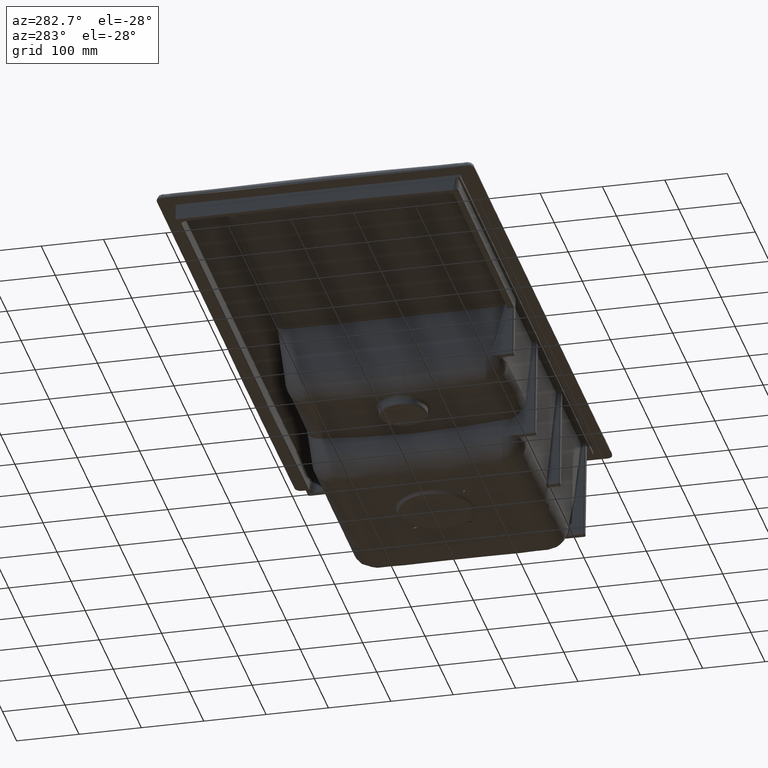
[diagram: clean part render]
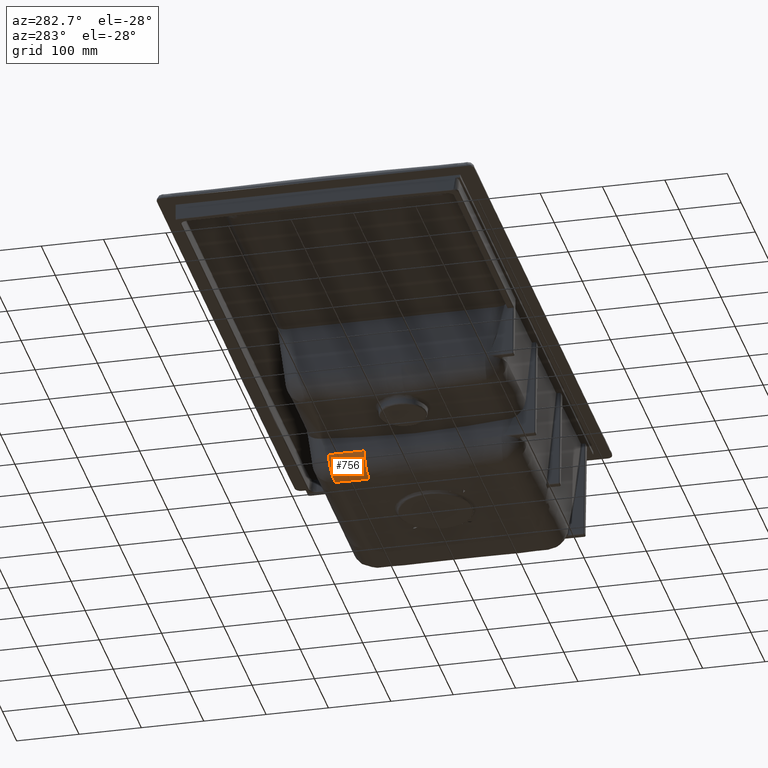
[diagram: same view with one face highlighted and labeled with its STEP entity id]
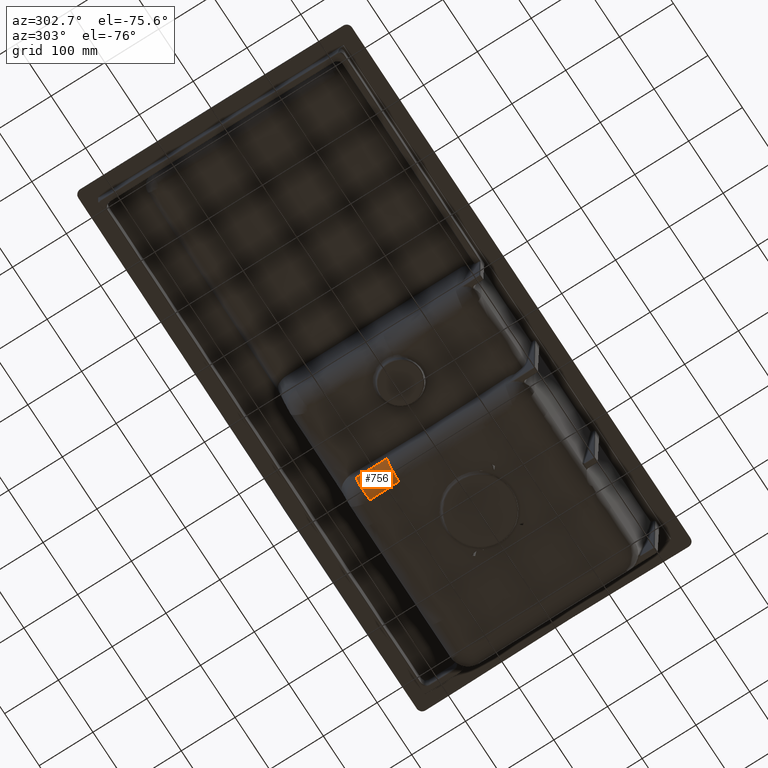
[diagram: same view with one face highlighted and labeled with its STEP entity id]
A machine part, auxiliary view. The second image highlights one B-rep face of the part: STEP entity #756.
A second angle (auxiliary view) of the same face is appended — the face is thin or edge-on in the first view.
In plain terms, the highlighted face is a freeform B-spline surface patch.
Its self-contained STEP definition (entity closure, byte-faithful):
#756=ADVANCED_FACE('',(#1265),#1030,.T.);
#1030=B_SPLINE_SURFACE_WITH_KNOTS('',3,3,((#17713,#17714,#17715,#17716,
#17717,#17718,#17719,#17720),(#17721,#17722,#17723,#17724,#17725,#17726,
#17727,#17728),(#17729,#17730,#17731,#17732,#17733,#17734,#17735,#17736),
(#17737,#17738,#17739,#17740,#17741,#17742,#17743,#17744),(#17745,#17746,
#17747,#17748,#17749,#17750,#17751,#17752),(#17753,#17754,#17755,#17756,
#17757,#17758,#17759,#17760),(#17761,#17762,#17763,#17764,#17765,#17766,
#17767,#17768),(#17769,#17770,#17771,#17772,#17773,#17774,#17775,#17776),
(#17777,#17778,#17779,#17780,#17781,#17782,#17783,#17784),(#17785,#17786,
#17787,#17788,#17789,#17790,#17791,#17792)),.UNSPECIFIED.,.F.,.F.,.F.,(4,
2,2,2,4),(4,2,2,4),(0.,0.25,0.5,0.75,1.),(0.,0.5,0.75,1.),.UNSPECIFIED.);
#1265=FACE_OUTER_BOUND('',#1674,.T.);
#1674=EDGE_LOOP('',(#2743,#2744,#2745,#2746));
#2743=ORIENTED_EDGE('',*,*,#4877,.F.);
#2744=ORIENTED_EDGE('',*,*,#4858,.T.);
#2745=ORIENTED_EDGE('',*,*,#4863,.T.);
#2746=ORIENTED_EDGE('',*,*,#4876,.F.);
#4115=VERTEX_POINT('',#16732);
#4116=VERTEX_POINT('',#16754);
#4120=VERTEX_POINT('',#17029);
#4127=VERTEX_POINT('',#17638);
#4858=EDGE_CURVE('',#4116,#4115,#5713,.T.);
#4863=EDGE_CURVE('',#4115,#4120,#5718,.T.);
#4876=EDGE_CURVE('',#4127,#4120,#5731,.T.);
#4877=EDGE_CURVE('',#4116,#4127,#5732,.T.);
#5713=B_SPLINE_CURVE_WITH_KNOTS('',3,(#16733,#16734,#16735,#16736,#16737,
#16738,#16739,#16740,#16741,#16742,#16743,#16744,#16745,#16746,#16747,#16748,
#16749,#16750,#16751,#16752,#16753),.UNSPECIFIED.,.F.,.F.,(4,2,2,2,2,2,
1,2,2,2,4),(0.,0.249999999999989,0.374999999999983,0.437499999999981,0.46874999999998,
0.48437499999998,0.492187499999981,0.496093749999981,0.499999999999981,
0.74999999999999,1.),.UNSPECIFIED.);
#5718=B_SPLINE_CURVE_WITH_KNOTS('',3,(#17030,#17031,#17032,#17033,#17034,
#17035,#17036,#17037,#17038,#17039,#17040,#17041,#17042,#17043,#17044,#17045,
#17046,#17047,#17048,#17049,#17050,#17051,#17052,#17053,#17054,#17055,#17056,
#17057,#17058,#17059,#17060,#17061,#17062,#17063),.UNSPECIFIED.,.F.,.F.,
(4,2,2,1,2,2,2,2,1,2,2,2,2,2,2,2,2,4),(0.,0.062500000000003,0.0937500000000037,
0.109375000000005,0.117187500000006,0.125000000000007,0.187500000000016,
0.21875000000002,0.234375000000021,0.242187500000021,0.250000000000022,
0.375000000000015,0.437500000000012,0.46875000000001,0.48437500000001,0.492187500000009,
0.500000000000009,1.),.UNSPECIFIED.);
#5731=B_SPLINE_CURVE_WITH_KNOTS('',3,(#17639,#17640,#17641,#17642,#17643,
#17644,#17645,#17646,#17647,#17648),.UNSPECIFIED.,.F.,.F.,(4,2,2,2,4),(0.,
0.25,0.5,0.75,1.),.UNSPECIFIED.);
#5732=B_SPLINE_CURVE_WITH_KNOTS('',3,(#17709,#17710,#17711,#17712),
 .UNSPECIFIED.,.F.,.F.,(4,4),(0.,1.),.UNSPECIFIED.);
#16732=CARTESIAN_POINT('',(125.118787982685,136.611800549359,-205.689981823979));
#16733=CARTESIAN_POINT('',(89.8626617895508,139.651983763834,-174.630232128626));
#16734=CARTESIAN_POINT('',(90.2945806668809,139.612162787837,-178.737051671743));
#16735=CARTESIAN_POINT('',(91.6186430086929,139.51160389423,-183.060883864416));
#16736=CARTESIAN_POINT('',(95.0422082936348,139.266821307227,-189.041519058109));
#16737=CARTESIAN_POINT('',(96.4162075277271,139.169092524338,-190.946531954952));
#16738=CARTESIAN_POINT('',(98.7631666689505,138.994293601995,-193.597303809361));
#16739=CARTESIAN_POINT('',(99.5930966351926,138.931325876002,-194.446389038769));
#16740=CARTESIAN_POINT('',(100.901071444801,138.829332240703,-195.658575884306));
#16741=CARTESIAN_POINT('',(101.347573488267,138.794077507503,-196.052394884513));
#16742=CARTESIAN_POINT('',(102.032025037288,138.739250718608,-196.626519716146));
#16743=CARTESIAN_POINT('',(102.262644414898,138.720651892155,-196.815112111921));
#16744=CARTESIAN_POINT('',(102.611957587843,138.692252285385,-197.093779141816));
#16745=CARTESIAN_POINT('',(102.787466934699,138.677927636916,-197.232059093907));
#16746=CARTESIAN_POINT('',(102.964224102886,138.663414615596,-197.368752883133));
#16747=CARTESIAN_POINT('',(103.082336014582,138.653697285281,-197.459528946534));
#16748=CARTESIAN_POINT('',(103.171886064172,138.646310014255,-197.527783887414));
#16749=CARTESIAN_POINT('',(105.054988975323,138.490758872686,-198.957205642606));
#16750=CARTESIAN_POINT('',(107.778623274064,138.249303967342,-200.764073427244));
#16751=CARTESIAN_POINT('',(115.187991371157,137.578919606542,-203.956219832075));
#16752=CARTESIAN_POINT('',(119.896392751804,137.148491713459,-205.288550537845));
#16753=CARTESIAN_POINT('',(125.118732744935,136.611373273041,-205.690128675211));
#16754=CARTESIAN_POINT('',(89.8626617915654,139.651983897885,-174.630232147781));
#17029=CARTESIAN_POINT('',(123.999949202719,82.6683662221889,-206.771970203778));
#17030=CARTESIAN_POINT('',(125.118763162953,136.611370144619,-205.690131014227));
#17031=CARTESIAN_POINT('',(125.103052536823,135.923675057913,-205.720556984895));
#17032=CARTESIAN_POINT('',(125.08217407113,135.017346828818,-205.760034047002));
#17033=CARTESIAN_POINT('',(125.044280926916,133.330035888963,-205.830381311529));
#17034=CARTESIAN_POINT('',(125.030549519932,132.712963785317,-205.855673004989));
#17035=CARTESIAN_POINT('',(125.008321226047,131.705436719729,-205.895951967806));
#17036=CARTESIAN_POINT('',(124.996797231012,131.181193686709,-205.916675564411));
#17037=CARTESIAN_POINT('',(124.984638396245,130.626240119118,-205.93818473733));
#17038=CARTESIAN_POINT('',(124.976387131742,130.249447671424,-205.952687891693));
#17039=CARTESIAN_POINT('',(124.971131091725,130.009316704914,-205.961855519507));
#17040=CARTESIAN_POINT('',(124.942190610505,128.687252776529,-206.012036139976));
#17041=CARTESIAN_POINT('',(124.917559372798,127.537434569373,-206.053800014777));
#17042=CARTESIAN_POINT('',(124.881243172325,125.850766010382,-206.112523796702));
#17043=CARTESIAN_POINT('',(124.869279356601,125.29485496703,-206.131445474828));
#17044=CARTESIAN_POINT('',(124.851651360959,124.470397098963,-206.158899143256));
#17045=CARTESIAN_POINT('',(124.842910198093,124.060525598812,-206.172393555664));
#17046=CARTESIAN_POINT('',(124.834281600217,123.654191974378,-206.185548142305));
#17047=CARTESIAN_POINT('',(124.82855456484,123.384089267027,-206.194243314314));
#17048=CARTESIAN_POINT('',(124.824755020001,123.204547653459,-206.199982219225));
#17049=CARTESIAN_POINT('',(124.792637399844,121.685063171093,-206.248345864208));
#17050=CARTESIAN_POINT('',(124.754252774604,119.845674753317,-206.304352494863));
#17051=CARTESIAN_POINT('',(124.684489962029,116.473039876543,-206.394963909451));
#17052=CARTESIAN_POINT('',(124.659214509824,115.246577207366,-206.426227831661));
#17053=CARTESIAN_POINT('',(124.618435963695,113.253666750708,-206.473227214894));
#17054=CARTESIAN_POINT('',(124.604367063145,112.563828217676,-206.488908614054));
#17055=CARTESIAN_POINT('',(124.582586786386,111.490798783982,-206.512247082189));
#17056=CARTESIAN_POINT('',(124.575210264309,111.126741664494,-206.519995840267));
#17057=CARTESIAN_POINT('',(124.563957860583,110.57107885709,-206.531545952544));
#17058=CARTESIAN_POINT('',(124.560176438605,110.384262103447,-206.535383809096));
#17059=CARTESIAN_POINT('',(124.552552366795,110.007437178442,-206.543030567774));
#17060=CARTESIAN_POINT('',(124.547676236112,109.76630438333,-206.547851294871));
#17061=CARTESIAN_POINT('',(124.363090760952,100.635159928759,-206.728568911972));
#17062=CARTESIAN_POINT('',(124.185845228276,91.6341252857419,-206.800125888416));
#17063=CARTESIAN_POINT('',(123.99995773826,82.6683673721619,-206.771914123044));
#17638=CARTESIAN_POINT('',(89.8592490475708,82.6808125389908,-174.597782712324));
#17639=CARTESIAN_POINT('',(89.8592490475708,82.6808125389994,-174.597782712324));
#17640=CARTESIAN_POINT('',(90.2769242233169,82.6785255124785,-178.56916869352));
#17641=CARTESIAN_POINT('',(91.5000159911137,82.6689095239965,-182.653782024116));
#17642=CARTESIAN_POINT('',(95.5076712166015,82.6445512138758,-190.201257791102));
#17643=CARTESIAN_POINT('',(98.2772294618817,82.6303933137687,-193.651238878582));
#17644=CARTESIAN_POINT('',(104.773218784554,82.6136546495156,-199.401387483189));
#17645=CARTESIAN_POINT('',(108.488405142284,82.6113478782568,-201.70608073729));
#17646=CARTESIAN_POINT('',(116.184286090312,82.6261448152791,-205.09723128994));
#17647=CARTESIAN_POINT('',(120.159662343416,82.6431323019797,-206.189067182267));
#17648=CARTESIAN_POINT('',(123.999956312089,82.6683659668508,-206.771923319698));
#17709=CARTESIAN_POINT('',(89.8626617895508,139.651983763595,-174.630232128625));
#17710=CARTESIAN_POINT('',(89.8615242088908,120.661593355395,-174.619415656525));
#17711=CARTESIAN_POINT('',(89.8603866282308,101.671202947195,-174.608599184424));
#17712=CARTESIAN_POINT('',(89.8592490475709,82.6808125389945,-174.597782712324));
#17713=CARTESIAN_POINT('',(124.278427994993,82.6725355518336,-206.813342344287));
#17714=CARTESIAN_POINT('',(124.479668775428,92.3325904681208,-206.839799102063));
#17715=CARTESIAN_POINT('',(124.680382089134,101.998037596748,-206.75205458212));
#17716=CARTESIAN_POINT('',(124.981529317985,116.503952634698,-206.433287084104));
#17717=CARTESIAN_POINT('',(125.083834183214,121.341517396915,-206.295837760091));
#17718=CARTESIAN_POINT('',(125.279985113555,131.014464713207,-205.955900064802));
#17719=CARTESIAN_POINT('',(125.367484840998,135.854132867251,-205.753231802825));
#17720=CARTESIAN_POINT('',(125.496736335923,140.693637643754,-205.519531352279));
#17721=CARTESIAN_POINT('',(120.421145329026,82.6143124374358,-206.251322912925));
#17722=CARTESIAN_POINT('',(120.603788887615,92.2634693535865,-206.331928489907));
#17723=CARTESIAN_POINT('',(120.792847771424,101.925071685569,-206.29977806702));
#17724=CARTESIAN_POINT('',(121.089888613471,116.432983745142,-206.065057358955));
#17725=CARTESIAN_POINT('',(121.192924157077,121.274017766777,-205.955687662348));
#17726=CARTESIAN_POINT('',(121.396001984794,130.948935286982,-205.671925032085));
#17727=CARTESIAN_POINT('',(121.490150584071,135.791967814772,-205.497195514894));
#17728=CARTESIAN_POINT('',(121.625965853695,140.638782590275,-205.291199761152));
#17729=CARTESIAN_POINT('',(116.422039368413,82.5742154257412,-205.177227603893));
#17730=CARTESIAN_POINT('',(116.574307440219,92.2099119765638,-205.296269911726));
#17731=CARTESIAN_POINT('',(116.7396402178,101.863502099296,-205.308669291957));
#17732=CARTESIAN_POINT('',(117.014352742628,116.365690309758,-205.150515167172));
#17733=CARTESIAN_POINT('',(117.11203789176,121.206952567483,-205.068305201475));
#17734=CARTESIAN_POINT('',(117.31002811351,130.879091212128,-204.841890239617));
#17735=CARTESIAN_POINT('',(117.404951863168,135.721875505819,-204.697267342535));
#17736=CARTESIAN_POINT('',(117.541522976281,140.57123465959,-204.523613653575));
#17737=CARTESIAN_POINT('',(108.67004992792,82.5375935042921,-201.808799911697));
#17738=CARTESIAN_POINT('',(108.756595790978,92.1439365927462,-201.961097414106));
#17739=CARTESIAN_POINT('',(108.865592367526,101.774603906538,-202.027334613038));
#17740=CARTESIAN_POINT('',(109.073038796405,116.249856219768,-201.985334133757));
#17741=CARTESIAN_POINT('',(109.150904409496,121.084428464414,-201.947873371197));
#17742=CARTESIAN_POINT('',(109.31743763849,130.740653784157,-201.822810212913));
#17743=CARTESIAN_POINT('',(109.401760244248,135.57524872484,-201.734550514055));
#17744=CARTESIAN_POINT('',(109.525091145342,140.41894732464,-201.626395296093));
#17745=CARTESIAN_POINT('',(104.922530355201,82.5413742000775,-199.508929595866));
#17746=CARTESIAN_POINT('',(104.974521923813,92.1318025539694,-199.655423619713));
#17747=CARTESIAN_POINT('',(105.051568744943,101.747535442517,-199.730446516135));
#17748=CARTESIAN_POINT('',(105.214593969772,116.201493270738,-199.727290068987));
#17749=CARTESIAN_POINT('',(105.278080423151,121.029101208173,-199.707173393906));
#17750=CARTESIAN_POINT('',(105.418242331951,130.672116950244,-199.625660407993));
#17751=CARTESIAN_POINT('',(105.49110510118,135.498724396632,-199.563424003166));
#17752=CARTESIAN_POINT('',(105.600170709912,140.334127195998,-199.488246005943));
#17753=CARTESIAN_POINT('',(98.3644782480247,82.5766393073001,-193.751276521791));
#17754=CARTESIAN_POINT('',(98.3695979890424,92.1391972796154,-193.858312089884));
#17755=CARTESIAN_POINT('',(98.3977692269251,101.725164840541,-193.924384625281));
#17756=CARTESIAN_POINT('',(98.4803901128382,116.131678388418,-193.958794725033));
#17757=CARTESIAN_POINT('',(98.515507566465,120.942078890892,-193.959896230197));
#17758=CARTESIAN_POINT('',(98.598308174747,130.554296628645,-193.9388161559));
#17759=CARTESIAN_POINT('',(98.643406189685,135.362072888552,-193.915424987663));
#17760=CARTESIAN_POINT('',(98.7146116971975,140.175992507472,-193.891768460066));
#17761=CARTESIAN_POINT('',(95.5654526970232,82.6074490000006,-190.288725270022));
#17762=CARTESIAN_POINT('',(95.5596537299808,92.1581887790516,-190.363416960648));
#17763=CARTESIAN_POINT('',(95.5718871569922,101.729555963858,-190.412659551645));
#17764=CARTESIAN_POINT('',(95.6197853386075,116.110346802578,-190.446089925033));
#17765=CARTESIAN_POINT('',(95.6412907624814,120.910678036852,-190.450979281171));
#17766=CARTESIAN_POINT('',(95.6937382605822,130.505581369218,-190.446198955678));
#17767=CARTESIAN_POINT('',(95.722823958027,135.302736710747,-190.435165330651));
#17768=CARTESIAN_POINT('',(95.7705630895287,140.103747957949,-190.429105787207));
#17769=CARTESIAN_POINT('',(91.5151897101054,82.6590871127335,-182.70310936619));
#17770=CARTESIAN_POINT('',(91.5082913481669,92.1993543888054,-182.728300852468));
#17771=CARTESIAN_POINT('',(91.5074357526809,101.751988331984,-182.748313995756));
#17772=CARTESIAN_POINT('',(91.5146303956368,116.094362270493,-182.768647708714));
#17773=CARTESIAN_POINT('',(91.5186352209696,120.878536007235,-182.774202825595));
#17774=CARTESIAN_POINT('',(91.529448132791,130.445534385356,-182.781797504181));
#17775=CARTESIAN_POINT('',(91.5356936846837,135.226997685824,-182.78277216089));
#17776=CARTESIAN_POINT('',(91.5473875321456,140.008931861956,-182.79087500926));
#17777=CARTESIAN_POINT('',(90.2794501579636,82.6785116816692,-178.59318606881));
#17778=CARTESIAN_POINT('',(90.2805007183162,92.220512865083,-178.603175123599));
#17779=CARTESIAN_POINT('',(90.2814326135362,101.769349263744,-178.612035874579));
#17780=CARTESIAN_POINT('',(90.2824729471854,116.099596082215,-178.621927692267));
#17781=CARTESIAN_POINT('',(90.2827829160468,120.877915499347,-178.624874973198));
#17782=CARTESIAN_POINT('',(90.2832687242938,130.434688568015,-178.629494189836));
#17783=CARTESIAN_POINT('',(90.2833836184276,135.2113487157,-178.630586639027));
#17784=CARTESIAN_POINT('',(90.2839135544019,139.987545882508,-178.635625435713));
#17785=CARTESIAN_POINT('',(89.8592490475708,82.6808125389945,-174.597782712324));
#17786=CARTESIAN_POINT('',(89.8598212506552,92.2329789144592,-174.603223397909));
#17787=CARTESIAN_POINT('',(89.8603934537284,101.785145289697,-174.608664083387));
#17788=CARTESIAN_POINT('',(89.8612517583295,116.113394852705,-174.616825111521));
#17789=CARTESIAN_POINT('',(89.86153785986,120.889478040424,-174.619545454202));
#17790=CARTESIAN_POINT('',(89.8621100629251,130.441644415885,-174.624986139603));
#17791=CARTESIAN_POINT('',(89.862396164466,135.217727603514,-174.627706482384));
#17792=CARTESIAN_POINT('',(89.8626822660027,139.993810791182,-174.630426825124));